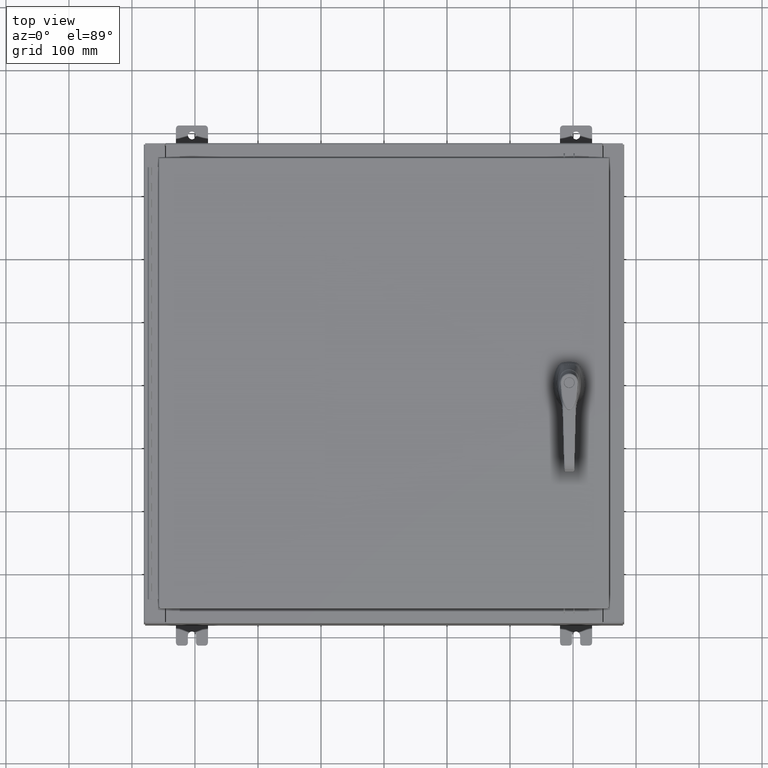
[diagram: clean part render]
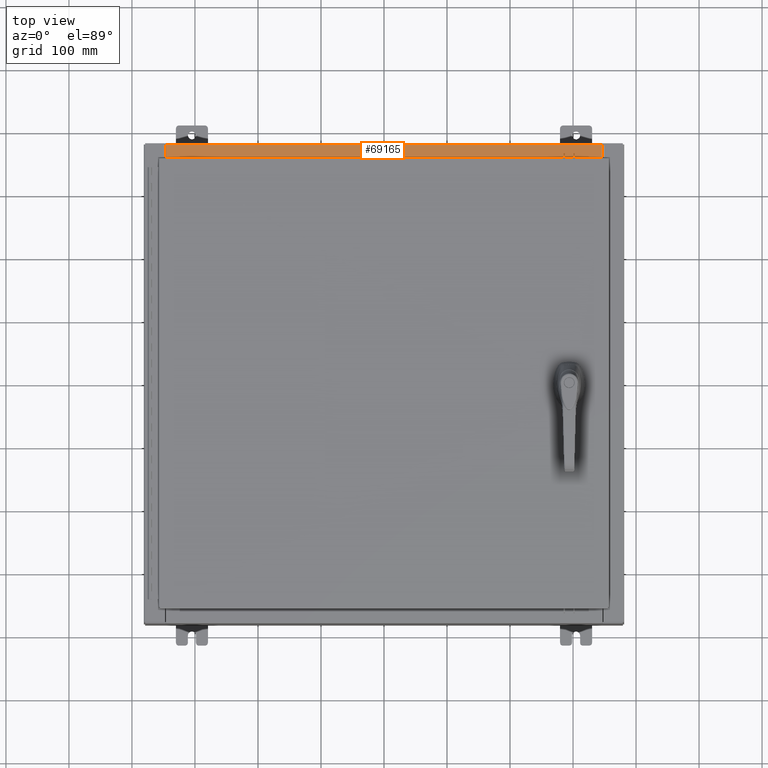
[diagram: same view with one face highlighted and labeled with its STEP entity id]
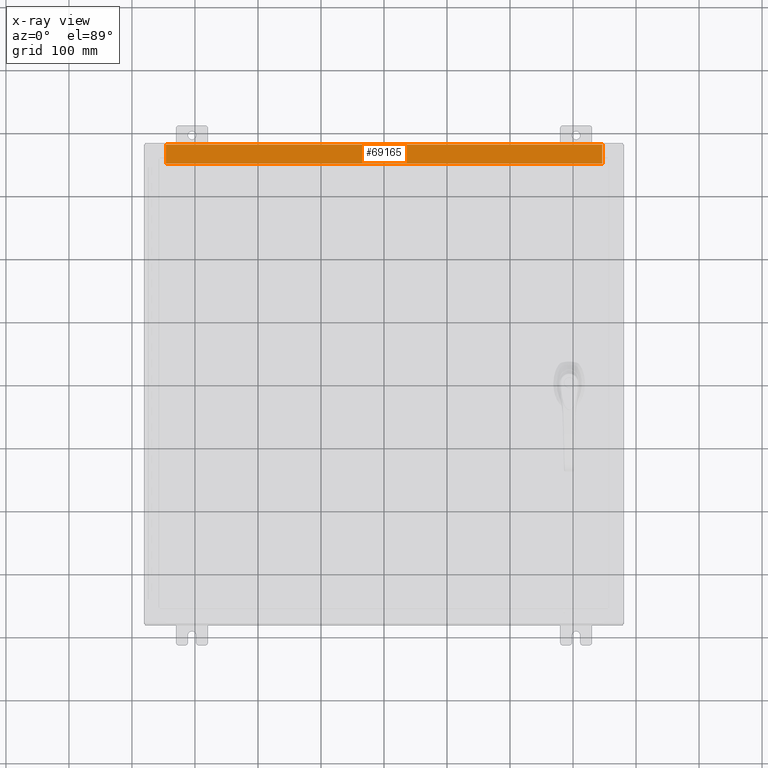
[diagram: x-ray of the same camera — body ghosted, the highlighted face saturated]
A machine part, top view. The second image highlights one B-rep face of the part: STEP entity #69165.
The next image is the same camera in x-ray: the body ghosted, the highlighted face saturated — about 0% of this face is hidden behind the body in this view.
In plain terms, the highlighted planar face has unit normal (0, 0, 1).
Its self-contained STEP definition (entity closure, byte-faithful):
#2095 = DIRECTION ( 'NONE',  ( 0.0000000000000000000, -1.000000000000000000, 3.566381192773190000E-015 ) ) ;
#3281 = VERTEX_POINT ( 'NONE', #60939 ) ;
#4338 = LINE ( 'NONE', #27204, #72950 ) ;
#6287 = VECTOR ( 'NONE', #16732, 39.37007874015748100 ) ;
#9212 = CARTESIAN_POINT ( 'NONE',  ( 13.63720000000000400, -1.287299999999999900, 4.000000000000003600 ) ) ;
#10241 = EDGE_CURVE ( 'NONE', #3281, #11957, #4338, .T. ) ;
#11957 = VERTEX_POINT ( 'NONE', #62394 ) ;
#13730 = VERTEX_POINT ( 'NONE', #118285 ) ;
#16732 = DIRECTION ( 'NONE',  ( -0.0000000000000000000, 1.000000000000000000, -3.566381192773190000E-015 ) ) ;
#20023 = PLANE ( 'NONE',  #102830 ) ;
#23204 = VERTEX_POINT ( 'NONE', #42512 ) ;
#25906 = CARTESIAN_POINT ( 'NONE',  ( -13.63719999999999800, -0.07469999999999973900, 4.000000000000000000 ) ) ;
#27204 = CARTESIAN_POINT ( 'NONE',  ( -1.756834753793995900E-018, -0.08770000000000000000, 4.000000000000000900 ) ) ;
#28041 = ORIENTED_EDGE ( 'NONE', *, *, #54705, .F. ) ;
#33173 = EDGE_CURVE ( 'NONE', #3281, #23204, #60142, .T. ) ;
#42512 = CARTESIAN_POINT ( 'NONE',  ( 13.63720000000000400, -1.287299999999999900, 4.000000000000004400 ) ) ;
#47388 = EDGE_LOOP ( 'NONE', ( #28041, #82759, #55587, #109089 ) ) ;
#54001 = LINE ( 'NONE', #9212, #75367 ) ;
#54705 = EDGE_CURVE ( 'NONE', #13730, #11957, #100446, .T. ) ;
#55587 = ORIENTED_EDGE ( 'NONE', *, *, #33173, .F. ) ;
#56753 = DIRECTION ( 'NONE',  ( 0.0000000000000000000, 3.566381192773190000E-015, 1.000000000000000000 ) ) ;
#58772 = DIRECTION ( 'NONE',  ( -0.0000000000000000000, -1.000000000000000000, 3.566381192773190000E-015 ) ) ;
#60142 = LINE ( 'NONE', #70814, #102933 ) ;
#60939 = CARTESIAN_POINT ( 'NONE',  ( 13.63720000000000400, -0.08769999999999965300, 4.000000000000000000 ) ) ;
#62394 = CARTESIAN_POINT ( 'NONE',  ( -13.63719999999999800, -0.08770000000000000000, 4.000000000000000000 ) ) ;
#65509 = CARTESIAN_POINT ( 'NONE',  ( 0.0000000000000000000, 1.425992975200418500E-014, 4.000000000000000000 ) ) ;
#69165 = ADVANCED_FACE ( 'NONE', ( #100661 ), #20023, .T. ) ;
#70814 = CARTESIAN_POINT ( 'NONE',  ( 13.63720000000000400, -1.300299999999999800, 4.000000000000004400 ) ) ;
#72950 = VECTOR ( 'NONE', #100229, 39.37007874015748100 ) ;
#75367 = VECTOR ( 'NONE', #82168, 39.37007874015748100 ) ;
#82168 = DIRECTION ( 'NONE',  ( -1.000000000000000000, 0.0000000000000000000, 0.0000000000000000000 ) ) ;
#82759 = ORIENTED_EDGE ( 'NONE', *, *, #91740, .F. ) ;
#91740 = EDGE_CURVE ( 'NONE', #23204, #13730, #54001, .T. ) ;
#100229 = DIRECTION ( 'NONE',  ( -1.000000000000000000, 2.003232330437526000E-017, -7.144290108027600900E-032 ) ) ;
#100446 = LINE ( 'NONE', #25906, #6287 ) ;
#100661 = FACE_OUTER_BOUND ( 'NONE', #47388, .T. ) ;
#102830 = AXIS2_PLACEMENT_3D ( 'NONE', #65509, #56753, #2095 ) ;
#102933 = VECTOR ( 'NONE', #58772, 39.37007874015748100 ) ;
#109089 = ORIENTED_EDGE ( 'NONE', *, *, #10241, .T. ) ;
#118285 = CARTESIAN_POINT ( 'NONE',  ( -13.63719999999999800, -1.287299999999999200, 4.000000000000004400 ) ) ;